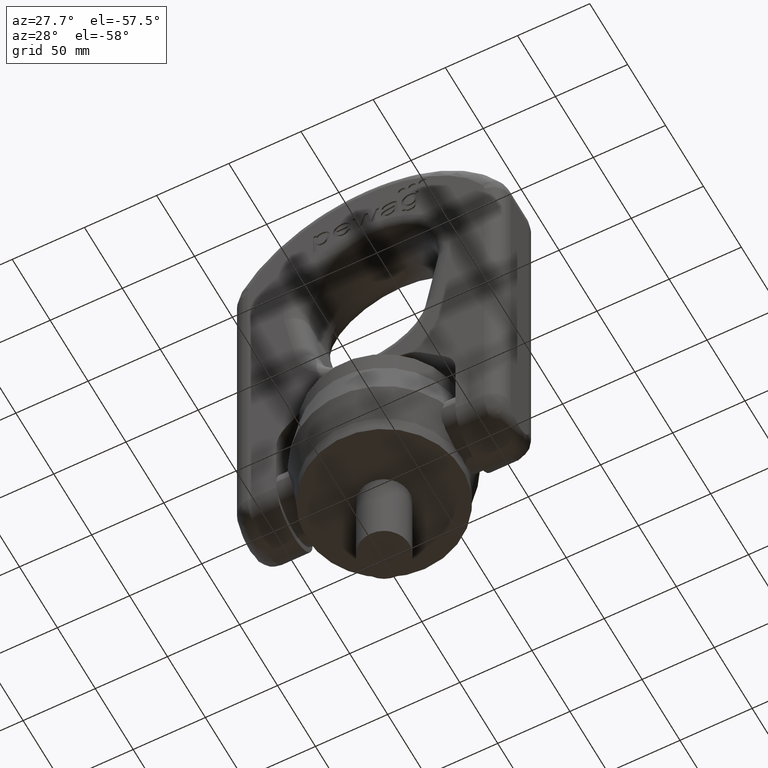
[diagram: clean part render]
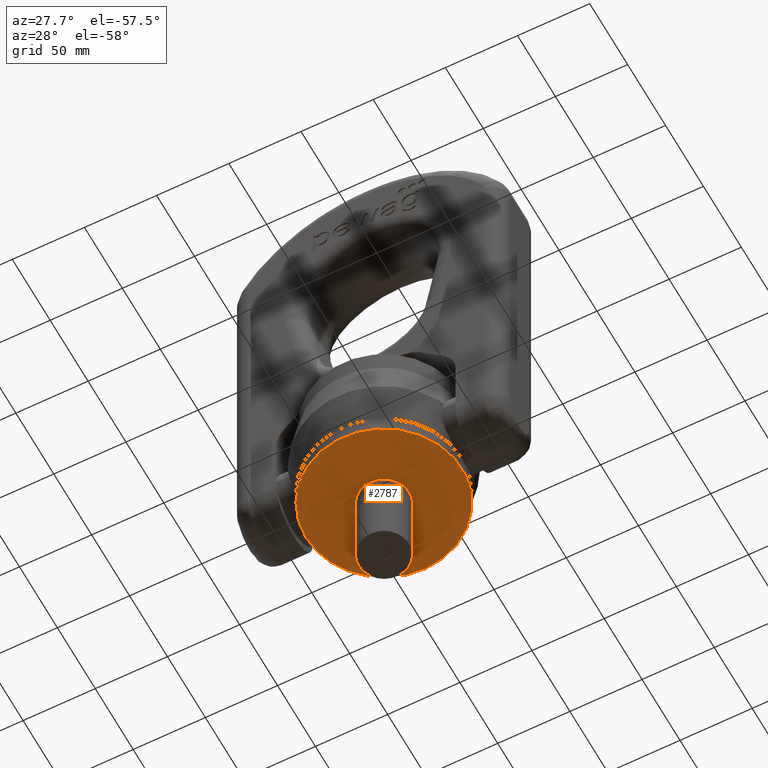
[diagram: same view with one face highlighted and labeled with its STEP entity id]
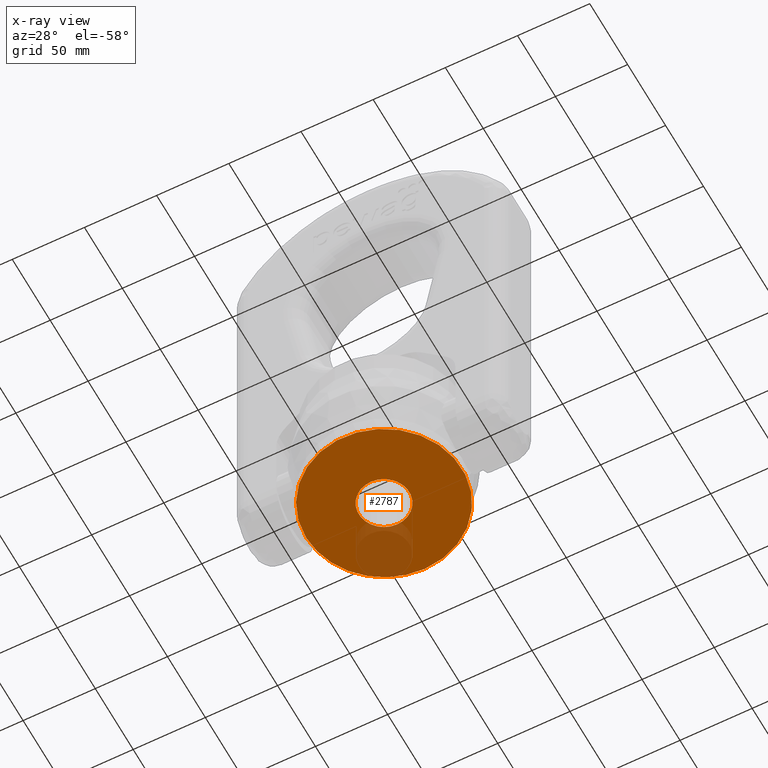
[diagram: x-ray of the same camera — body ghosted, the highlighted face saturated]
A machine part, auxiliary view. The second image highlights one B-rep face of the part: STEP entity #2787.
The next image is the same camera in x-ray: the body ghosted, the highlighted face saturated — about 14% of this face is hidden behind the body in this view.
In plain terms, the highlighted planar face has unit normal (0, 0, -1).
Its self-contained STEP definition (entity closure, byte-faithful):
#2665=PLANE('',#5832);
#2787=ADVANCED_FACE('',(#3071,#3072),#2665,.T.);
#3071=FACE_BOUND('',#3139,.T.);
#3072=FACE_BOUND('',#3140,.T.);
#3139=EDGE_LOOP('',(#3435));
#3140=EDGE_LOOP('',(#3436));
#3435=ORIENTED_EDGE('',*,*,#5119,.F.);
#3436=ORIENTED_EDGE('',*,*,#5118,.T.);
#4698=VERTEX_POINT('',#6940);
#4699=VERTEX_POINT('',#6943);
#5118=EDGE_CURVE('',#4698,#4698,#5750,.T.);
#5119=EDGE_CURVE('',#4699,#4699,#5751,.T.);
#5750=CIRCLE('',#5829,54.);
#5751=CIRCLE('',#5831,17.465);
#5829=AXIS2_PLACEMENT_3D('',#6939,#6068,#6069);
#5831=AXIS2_PLACEMENT_3D('',#6942,#6072,#6073);
#5832=AXIS2_PLACEMENT_3D('',#6944,#6074,#6075);
#6068=DIRECTION('',(0.,0.,-1.));
#6069=DIRECTION('',(-6.12323399573677E-17,1.,0.));
#6072=DIRECTION('',(0.,0.,-1.));
#6073=DIRECTION('',(-6.12323399573677E-17,1.,0.));
#6074=DIRECTION('',(0.,0.,-1.));
#6075=DIRECTION('',(-1.,0.,0.));
#6939=CARTESIAN_POINT('',(0.,0.,0.));
#6940=CARTESIAN_POINT('',(-3.30654635769785E-15,54.,0.));
#6942=CARTESIAN_POINT('',(0.,0.,0.));
#6943=CARTESIAN_POINT('',(-1.06942281735543E-15,17.465,0.));
#6944=CARTESIAN_POINT('',(0.,0.,0.));